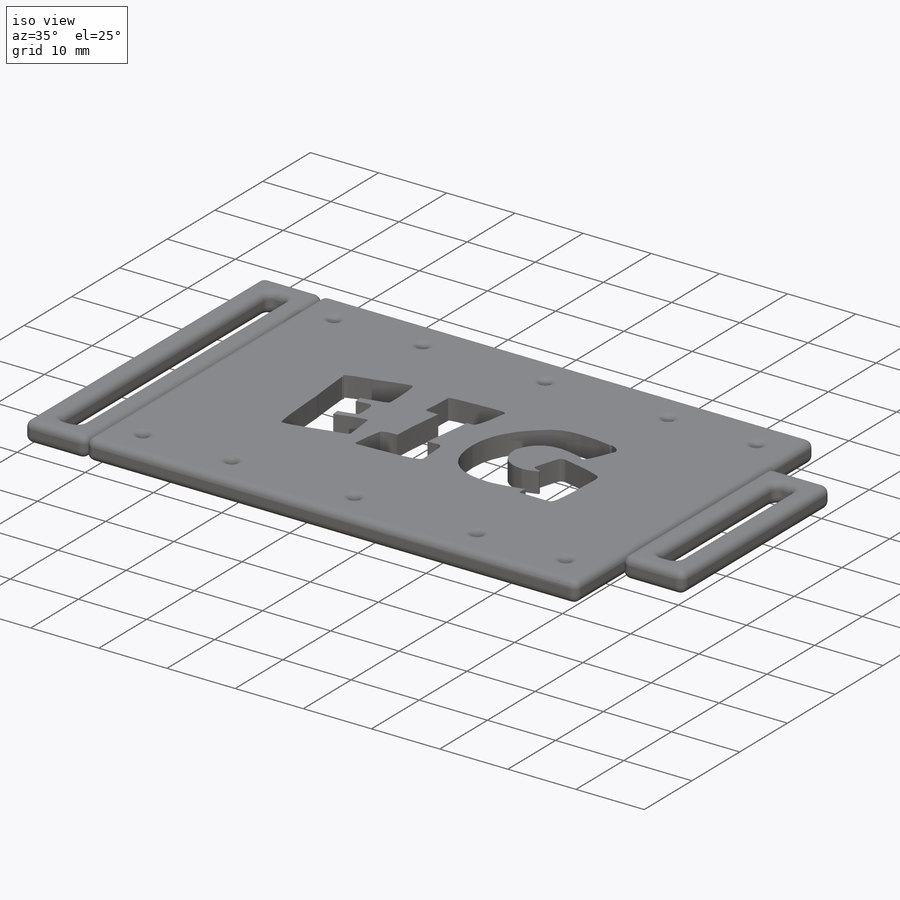
[diagram: iso view]
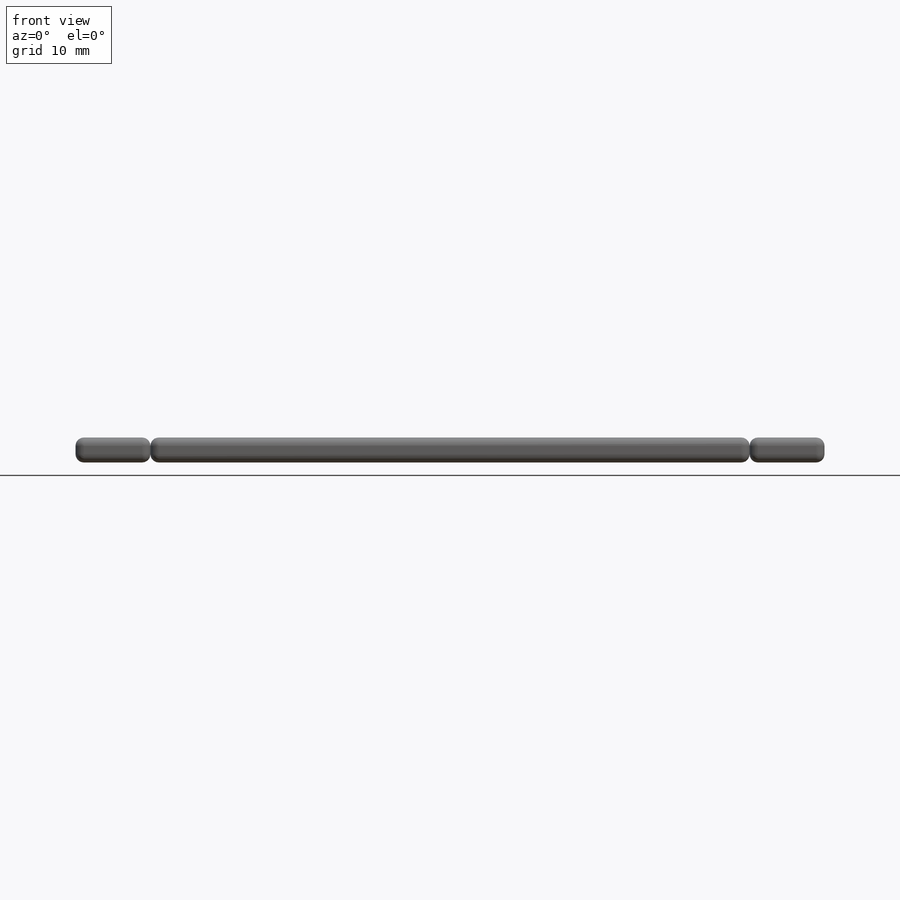
[diagram: front view]
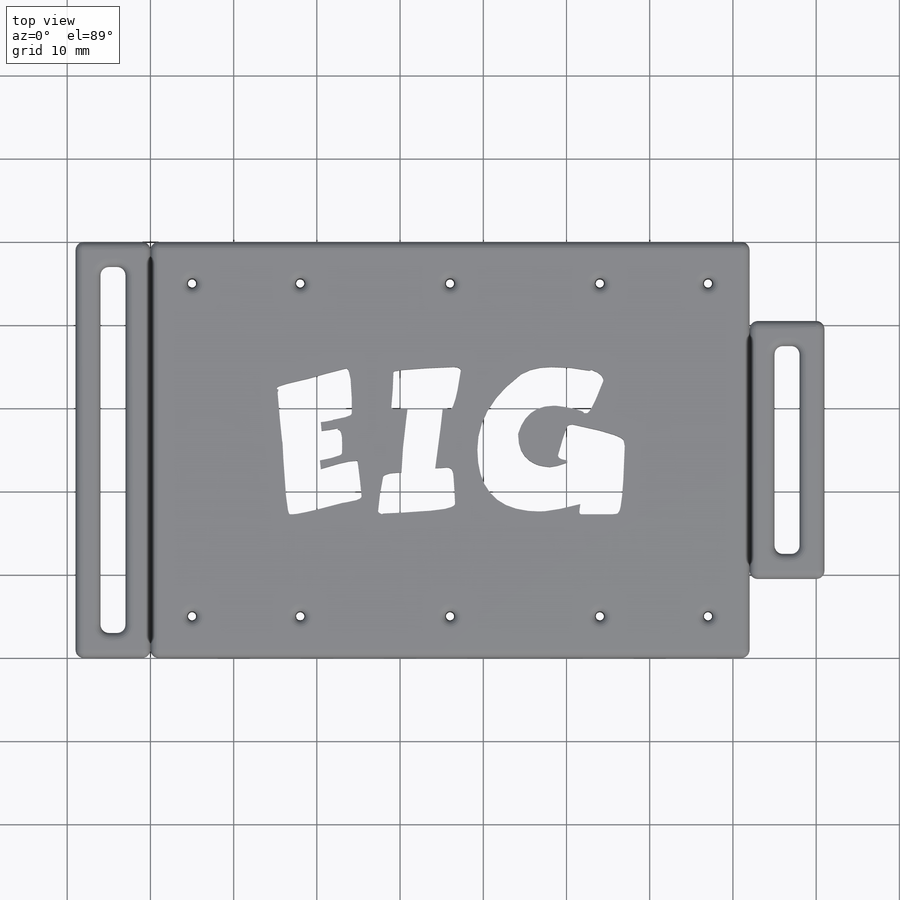
[diagram: top view]
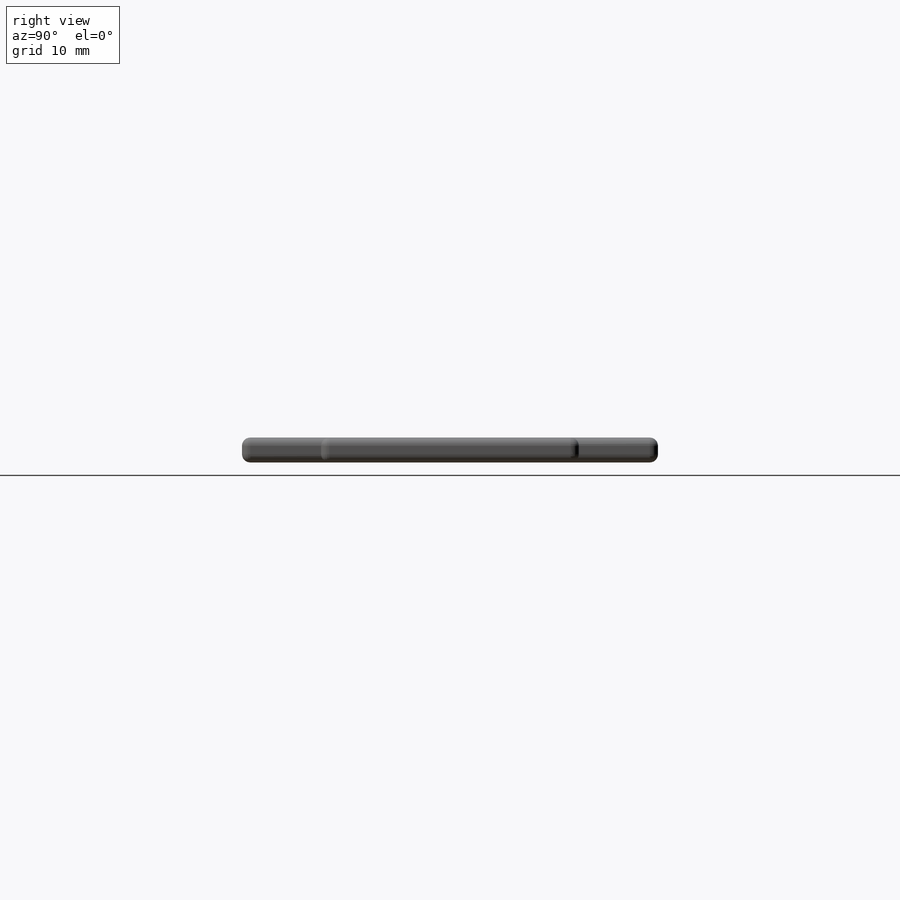
[diagram: right view]
SOLIDWORKS PART (.sldprt)
format: sldprt  version: not decoded by parser v0  size: 635,392 bytes
history: native  units: mm
features: sketch x4, fillet x3, extrude x2, cut_extrude x2, material x1 (+13 scaffold rows collapsed)
feature tree (25):
  scaffold x13  (default folders/planes/origin — collapsed)
  material  "Material <not specified>"
  sketch  "Sketch1"  dims[D1=72.0mm]
  extrude  "Boss-Extrude2"  Depth=3mm
  sketch  "Sketch8"  dims[D1=3.0mm D2=3.0mm D3=3.0mm D4=3.0mm D5=25.0mm D6=3.0mm D7=3.0mm D8=3.0mm D9=3.0mm D10=3.0mm D11=9.5mm D12=9.5mm D13=3.0mm]
  extrude  "Boss-Extrude4"  Depth=3mm
  sketch  "Sketch11"  dims[c1.D1=1.0mm c1.D3=1.0mm c1.D4=1.0mm c1.D5=1.0mm c1.D6=1.0mm c1.D8=1.0mm c1.D9=1.0mm c1.D10=1.0mm c1.D15=1.0mm c1.D16=1.0mm c1.D17=1.0mm c1.D19=1.0mm c1.D21=1.0mm c1.D22=~1.287813mm c1.D25=1.0mm c1.D26=1.0mm c1.D27=1.0mm c2.D1=2.0mm c2.D2=2.0mm c2.D3=2.0mm c2.D4=15.0mm c2.D5=33.0mm c2.D6=33.0mm c2.D7=15.0mm c2.D8=2.0mm c2.D9=2.0mm c2.D10=2.0mm c2.D11=2.0mm c2.D12=15.0mm c2.D13=33.0mm c2.D14=2.0mm c2.D15=2.0mm c2.D16=2.0mm c2.D17=2.0mm c2.D18=2.0mm c2.D19=15.0mm c2.D20=2.0mm c2.D21=2.0mm c2.D22=15.0mm c2.D23=15.0mm c2.D24=33.0mm c2.D25=17.5mm c2.D26=17.5mm c2.D27=17.5mm]
  cut_extrude  "Cut-Extrude10"  Depth=3mm
  fillet  "Fillet1"  Radius=1mm
  fillet  "Fillet2"  Radius=1mm
  fillet  "Fillet3"  Radius=1mm
  sketch  "Sketch12"
  cut_extrude  "Cut-Extrude11"  Depth=3mm
decode coverage: 10 of 11 modeling features carry decoded parameters
note: ~ marks probable driven/reference dimensions
note: suppression state not decoded; provenance and decode notes live in map.json
